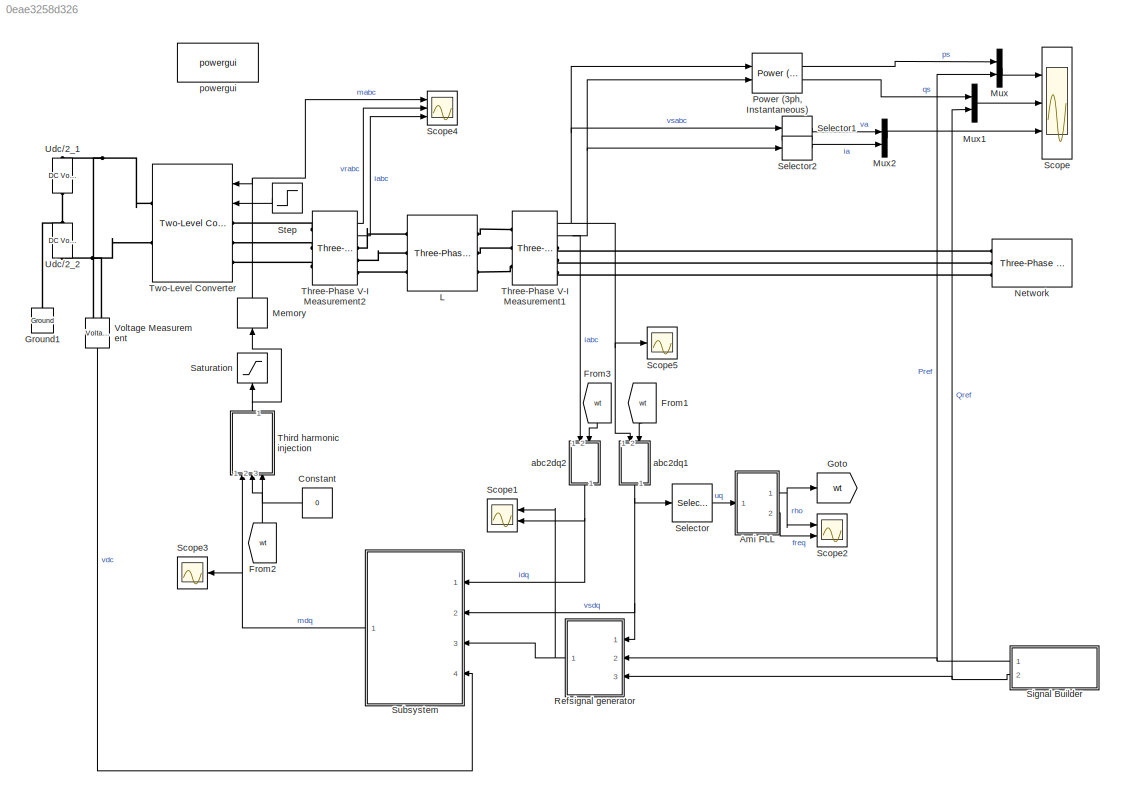
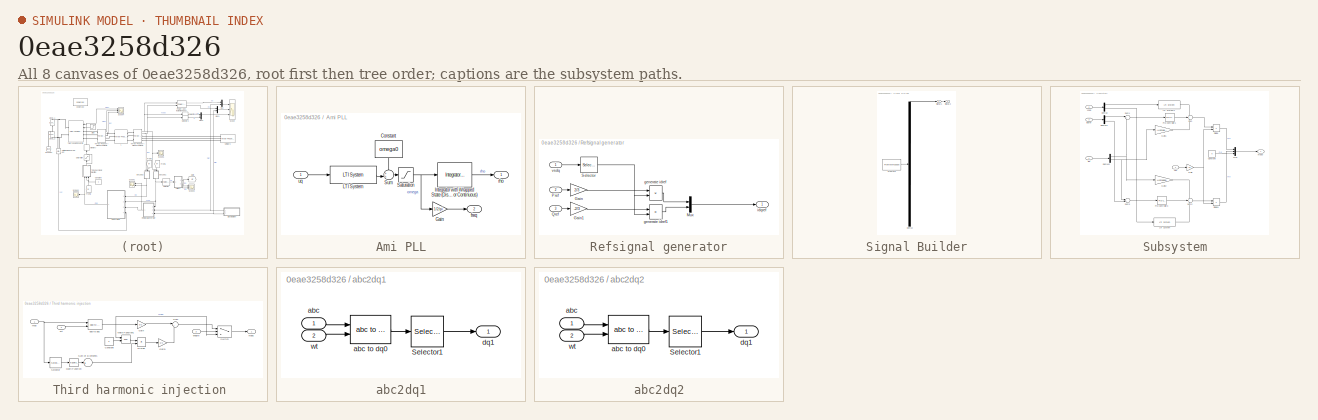
[diagram: thumbnail index - all 8 canvases of the model, root first then tree order]
MODEL slx_0eae3258d326
KIND model
CONFIG AbsTol = auto
CONFIG EnableMultiTasking = off
CONFIG FixedStep = 2e-5
CONFIG InitFcn = current_controlled_VSC_ami8p2_design\n
CONFIG MaxStep = 2e-5
CONFIG MinStep = auto
CONFIG RelTol = 1e-3
CONFIG SampleTimeConstraint = Unconstrained
CONFIG Solver = VariableStepDiscrete
CONFIG SolverName = VariableStepDiscrete
CONFIG StartTime = 0.0
CONFIG StopTime = 0.5
BLOCK [SubSystem] Ami PLL
  Ports = [1, 2]
  RequestExecContextInheritance = off
  Variant = off
BLOCK [Constant] Ami PLL/Constant
  Value = omega0
BLOCK [Gain] Ami PLL/Gain
  Gain = 1/2/pi
  OutDataTypeStr = Inherit: Inherit via internal rule
  ParamDataTypeStr = Inherit: Inherit via internal rule
  SaturateOnIntegerOverflow = off
BLOCK [Reference] Ami PLL/Integrator with Wrapped State (Discrete or Continuous)  REF=peGeneralControl/Integrator with
Wrapped State
(Discrete or Continuous)
  Ports = [1, 1]
  SourceBlock = peGeneralControl/Integrator with\nWrapped State\n(Discrete or Continuous)
  SourceType = Integrator with Wrapped State (Discrete or Continuous)
BLOCK [Reference] Ami PLL/LTI System  REF=cstblocks/LTI System
  Ports = [1, 1]
  SourceBlock = cstblocks/LTI System
  SourceProductBaseCode = CT
  SourceProductName = Control System Toolbox
  SourceType = LTI Block
BLOCK [Saturate] Ami PLL/Saturation
  InputPortMap = u0
  LowerLimit = PLL_wmin
  Ports = [1, 1]
  UpperLimit = PLL_wmax
BLOCK [Sum] Ami PLL/Sum
  IconShape = round
  InputSameDT = off
  Inputs = ++|
  OutDataTypeStr = Inherit: Inherit via internal rule
  Ports = [2, 1]
  SaturateOnIntegerOverflow = off
BLOCK [Outport] Ami PLL/freq
  IconDisplay = Port number
  Port = 2
BLOCK [Outport] Ami PLL/rho
  IconDisplay = Port number
BLOCK [Inport] Ami PLL/uq
  IconDisplay = Port number
BLOCK [Constant] Constant
  Value = 0
BLOCK [From] From1
  GotoTag = wt
BLOCK [From] From2
  GotoTag = wt
BLOCK [From] From3
  GotoTag = wt
BLOCK [Goto] Goto
  GotoTag = wt
BLOCK [Reference] Ground1  REF=powerlib/Elements/Ground
  Ports = [0, 0, 0, 0, 0, 1]
  SourceBlock = powerlib/Elements/Ground
  SourceProductBaseCode = PS
  SourceProductName = Simscape Power Systems
  SourceType = Ground
BLOCK [Reference] L  REF=powerlib/Elements/Three-Phase
Series RLC Branch
  AttributesFormatString = \n
  Ports = [0, 0, 0, 0, 0, 3, 3]
  SourceBlock = powerlib/Elements/Three-Phase\nSeries RLC Branch
  SourceProductBaseCode = PS
  SourceProductName = Simscape Power Systems
  SourceType = Three-Phase Series RLC Branch
BLOCK [Memory] Memory
BLOCK [Mux] Mux
  DisplayOption = bar
  Inputs = 2
  Ports = [2, 1]
BLOCK [Mux] Mux1
  DisplayOption = bar
  Inputs = 2
  Ports = [2, 1]
BLOCK [Mux] Mux2
  DisplayOption = bar
  Inputs = 2
  Ports = [2, 1]
BLOCK [Reference] Network  REF=powerlib/Electrical
Sources/Three-Phase Source
  Ports = [0, 0, 0, 0, 0, 0, 3]
  SourceBlock = powerlib/Electrical\nSources/Three-Phase Source
  SourceProductBaseCode = PS
  SourceProductName = Simscape Power Systems
  SourceType = Three-Phase Source
BLOCK [Reference] Power (3ph, Instantaneous)  REF=powerlib_meascontrol/Measurements/Power
(3ph, Instantaneous)
  Ports = [2, 2]
  SourceBlock = powerlib_meascontrol/Measurements/Power\n(3ph, Instantaneous)
  SourceProductBaseCode = PS
  SourceProductName = Simscape Power Systems
  SourceType = Power (3ph, Instantaneous)
BLOCK [SubSystem] Refsignal generator
  Ports = [3, 1]
  RequestExecContextInheritance = off
  Variant = off
BLOCK [Gain] Refsignal generator/Gain
  Gain = 2/3
  OutDataTypeStr = Inherit: Inherit via internal rule
  ParamDataTypeStr = Inherit: Inherit via internal rule
  SaturateOnIntegerOverflow = off
BLOCK [Gain] Refsignal generator/Gain1
  Gain = -2/3
  OutDataTypeStr = Inherit: Inherit via internal rule
  ParamDataTypeStr = Inherit: Inherit via internal rule
  SaturateOnIntegerOverflow = off
BLOCK [Mux] Refsignal generator/Mux
  DisplayOption = bar
  Inputs = 2
  Ports = [2, 1]
BLOCK [Inport] Refsignal generator/Pref
  IconDisplay = Port number
  Port = 2
BLOCK [Inport] Refsignal generator/Qref
  IconDisplay = Port number
  Port = 3
BLOCK [Selector] Refsignal generator/Selector
  IndexOptions = Index vector (dialog)
  Indices = [1]
  InputPortWidth = 2
  OutputSizes = 1
  Ports = [1, 1]
BLOCK [Product] Refsignal generator/generate idref
  InputSameDT = off
  Inputs = */
  OutDataTypeStr = Inherit: Inherit via internal rule
  Ports = [2, 1]
  RndMeth = Floor
  SaturateOnIntegerOverflow = off
BLOCK [Product] Refsignal generator/generate idref1
  InputSameDT = off
  Inputs = */
  OutDataTypeStr = Inherit: Inherit via internal rule
  Ports = [2, 1]
  RndMeth = Floor
  SaturateOnIntegerOverflow = off
BLOCK [Outport] Refsignal generator/idqref
  IconDisplay = Port number
BLOCK [Inport] Refsignal generator/vsdq
  IconDisplay = Port number
BLOCK [Saturate] Saturation
  InputPortMap = u0
  LowerLimit = -1
  Ports = [1, 1]
  UpperLimit = 1
BLOCK [Scope] Scope
  NumInputPorts = 3
  Ports = [3]
  ScopeSpecificationString = Simulink.scopes.TimeScopeBlockCfg('CurrentConfiguration', extmgr.ConfigurationSet(extmgr.Configuration('Core','General UI',true),extmgr.Configuration('Core','Source UI',true),extmgr.Configuration('Sources','WiredSimulink',true),extmgr.Configuration('Visuals','Time Domain',true,'SerializedDisplays',{struct('MinYLimReal','-7272141.74711','MaxYLimReal','5973260.60667','YLabelReal','','MinYLimMag','  ...<+2774ch>
BLOCK [Scope] Scope1
  NumInputPorts = 2
  Ports = [2]
  ScopeSpecificationString = Simulink.scopes.TimeScopeBlockCfg('CurrentConfiguration', extmgr.ConfigurationSet(extmgr.Configuration('Core','General UI',true),extmgr.Configuration('Core','Source UI',true),extmgr.Configuration('Sources','WiredSimulink',true,'DataLoggingVariableName','ScopeData1'),extmgr.Configuration('Visuals','Time Domain',true,'SerializedDisplays',{struct('MinYLimReal','-27745.62536','MaxYLimReal','21729.0335...<+1485ch>
BLOCK [Scope] Scope2
  NumInputPorts = 2
  Ports = [2]
  ScopeSpecificationString = Simulink.scopes.TimeScopeBlockCfg('CurrentConfiguration', extmgr.ConfigurationSet(extmgr.Configuration('Core','General UI',true),extmgr.Configuration('Core','Source UI',true),extmgr.Configuration('Sources','WiredSimulink',true,'DataLoggingVariableName','ScopeData2'),extmgr.Configuration('Visuals','Time Domain',true,'SerializedDisplays',{struct('MinYLimReal','-0.7854','MaxYLimReal','7.06858','YLabe...<+1989ch>
BLOCK [Scope] Scope3
  NumInputPorts = 1
  Ports = [1]
  ScopeSpecificationString = Simulink.scopes.TimeScopeBlockCfg('CurrentConfiguration', extmgr.ConfigurationSet(extmgr.Configuration('Core','General UI',true),extmgr.Configuration('Core','Source UI',true),extmgr.Configuration('Sources','WiredSimulink',true,'DataLoggingVariableName','ScopeData1'),extmgr.Configuration('Visuals','Time Domain',true,'SerializedDisplays',{struct('MinYLimReal','-0.56098','MaxYLimReal','1.53286','YLab...<+1476ch>
BLOCK [Scope] Scope4
  NumInputPorts = 3
  Ports = [3]
  ScopeSpecificationString = Simulink.scopes.TimeScopeBlockCfg('CurrentConfiguration', extmgr.ConfigurationSet(extmgr.Configuration('Core','General UI',true),extmgr.Configuration('Core','Source UI',true),extmgr.Configuration('Sources','WiredSimulink',true,'DataLoggingVariableName','ScopeData2'),extmgr.Configuration('Visuals','Time Domain',true,'SerializedDisplays',{struct('MinYLimReal','-1.00000','MaxYLimReal','1.00000','YLab...<+2813ch>
BLOCK [Scope] Scope5
  NumInputPorts = 1
  Ports = [1]
  ScopeSpecificationString = Simulink.scopes.TimeScopeBlockCfg('CurrentConfiguration', extmgr.ConfigurationSet(extmgr.Configuration('Core','General UI',true),extmgr.Configuration('Core','Source UI',true),extmgr.Configuration('Sources','WiredSimulink',true,'DataLoggingVariableName','ScopeData1'),extmgr.Configuration('Visuals','Time Domain',true,'SerializedDisplays',{struct('MinYLimReal','-489.89795','MaxYLimReal','489.89795','...<+1496ch>
BLOCK [Selector] Selector
  IndexOptions = Index vector (dialog)
  Indices = [2]
  InputPortWidth = 2
  OutputSizes = 1
  Ports = [1, 1]
BLOCK [Selector] Selector1
  IndexOptions = Index vector (dialog)
  Indices = [1]
  InputPortWidth = 3
  OutputSizes = 1
  Ports = [1, 1]
BLOCK [Selector] Selector2
  IndexOptions = Index vector (dialog)
  Indices = [1]
  InputPortWidth = 3
  OutputSizes = 1
  Ports = [1, 1]
BLOCK [SubSystem] Signal Builder
  ClipboardFcn = sigbuilder_block('clipboard');
  CloseFcn = sigbuilder_block('close');
  ContinueFcn = sigbuilder_block('continue');
  CopyFcn = sigbuilder_block('copy');
  DeleteFcn = sigbuilder_block('delete');
  LoadFcn = sigbuilder_block('load');
  MaskHideContents = on
  ModelCloseFcn = sigbuilder_block('modelClose');
  NameChangeFcn = sigbuilder_block('namechange');
  OpenFcn = sigbuilder_block('open',[437.6 199.2 550.4 400 ]);
  PauseFcn = sigbuilder_block('pause');
  Ports = [0, 2]
  PreSaveFcn = sigbuilder_block('preSave');
  RequestExecContextInheritance = off
  StartFcn = sigbuilder_block('start');
  StopFcn = sigbuilder_block('stop');
  Tag = STV Subsys
  Variant = off
BLOCK [Demux] Signal Builder/Demux
  Outputs = 2
  Ports = [1, 2]
  Tag = STV Demux
BLOCK [FromWorkspace] Signal Builder/FromWs
  SampleTime = 0
  Tag = STV FromWs
  VariableName = tuvar
  ZeroCross = on
BLOCK [Outport] Signal Builder/Signal 1
  IconDisplay = Port number
  Tag = STV Outport
BLOCK [Outport] Signal Builder/Signal 2
  IconDisplay = Port number
  Port = 2
  Tag = STV Outport
BLOCK [Step] Step
  After = 0
  Before = 1
  SampleTime = 0
  Time = 0.15
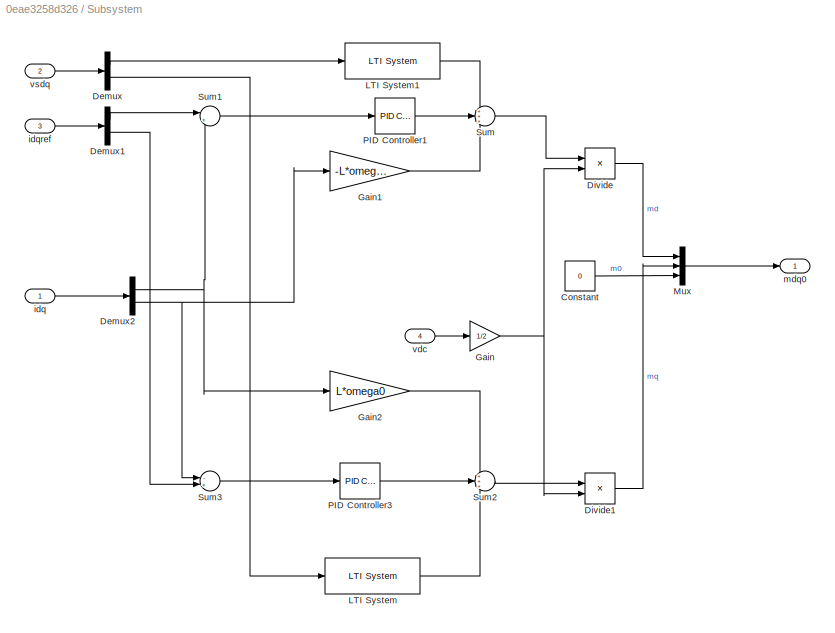
BLOCK [SubSystem] Subsystem
  Ports = [4, 1]
  RequestExecContextInheritance = off
  Variant = off
BLOCK [Constant] Subsystem/Constant
  Value = 0
BLOCK [Demux] Subsystem/Demux
  DisplayOption = bar
  Outputs = 2
  Ports = [1, 2]
BLOCK [Demux] Subsystem/Demux1
  DisplayOption = bar
  Outputs = 2
  Ports = [1, 2]
BLOCK [Demux] Subsystem/Demux2
  DisplayOption = bar
  Outputs = 2
  Ports = [1, 2]
BLOCK [Product] Subsystem/Divide
  InputSameDT = off
  Inputs = */
  OutDataTypeStr = Inherit: Inherit via internal rule
  Ports = [2, 1]
  RndMeth = Floor
  SaturateOnIntegerOverflow = off
BLOCK [Product] Subsystem/Divide1
  InputSameDT = off
  Inputs = */
  OutDataTypeStr = Inherit: Inherit via internal rule
  Ports = [2, 1]
  RndMeth = Floor
  SaturateOnIntegerOverflow = off
BLOCK [Gain] Subsystem/Gain
  Gain = 1/2
  OutDataTypeStr = Inherit: Inherit via internal rule
  ParamDataTypeStr = Inherit: Inherit via internal rule
  SaturateOnIntegerOverflow = off
BLOCK [Gain] Subsystem/Gain1
  Gain = -L*omega0
  OutDataTypeStr = Inherit: Inherit via internal rule
  ParamDataTypeStr = Inherit: Inherit via internal rule
  SaturateOnIntegerOverflow = off
BLOCK [Gain] Subsystem/Gain2
  Gain = L*omega0
  OutDataTypeStr = Inherit: Inherit via internal rule
  ParamDataTypeStr = Inherit: Inherit via internal rule
  SaturateOnIntegerOverflow = off
BLOCK [Reference] Subsystem/LTI System  REF=cstblocks/LTI System
  Ports = [1, 1]
  SourceBlock = cstblocks/LTI System
  SourceProductBaseCode = CT
  SourceProductName = Control System Toolbox
  SourceType = LTI Block
BLOCK [Reference] Subsystem/LTI System1  REF=cstblocks/LTI System
  Ports = [1, 1]
  SourceBlock = cstblocks/LTI System
  SourceProductBaseCode = CT
  SourceProductName = Control System Toolbox
  SourceType = LTI Block
BLOCK [Mux] Subsystem/Mux
  DisplayOption = bar
  Inputs = 3
  Ports = [3, 1]
BLOCK [Reference] Subsystem/PID Controller1  REF=simulink/Continuous/PID Controller
  Ports = [1, 1]
  SourceBlock = simulink/Continuous/PID Controller
  SourceProductBaseCode = SL
  SourceProductName = Simulink
  SourceType = PID 1dof
BLOCK [Reference] Subsystem/PID Controller3  REF=simulink/Continuous/PID Controller
  Ports = [1, 1]
  SourceBlock = simulink/Continuous/PID Controller
  SourceProductBaseCode = SL
  SourceProductName = Simulink
  SourceType = PID 1dof
BLOCK [Sum] Subsystem/Sum
  IconShape = round
  InputSameDT = off
  Inputs = +++
  OutDataTypeStr = Inherit: Inherit via internal rule
  Ports = [3, 1]
  SaturateOnIntegerOverflow = off
BLOCK [Sum] Subsystem/Sum1
  IconShape = round
  InputSameDT = off
  Inputs = |+-
  OutDataTypeStr = Inherit: Inherit via internal rule
  Ports = [2, 1]
  SaturateOnIntegerOverflow = off
BLOCK [Sum] Subsystem/Sum2
  IconShape = round
  InputSameDT = off
  Inputs = +++
  OutDataTypeStr = Inherit: Inherit via internal rule
  Ports = [3, 1]
  SaturateOnIntegerOverflow = off
BLOCK [Sum] Subsystem/Sum3
  IconShape = round
  InputSameDT = off
  Inputs = -+|
  OutDataTypeStr = Inherit: Inherit via internal rule
  Ports = [2, 1]
  SaturateOnIntegerOverflow = off
BLOCK [Inport] Subsystem/idq
  IconDisplay = Port number
BLOCK [Inport] Subsystem/idqref
  IconDisplay = Port number
  Port = 3
BLOCK [Outport] Subsystem/mdq0
  IconDisplay = Port number
BLOCK [Inport] Subsystem/vdc
  IconDisplay = Port number
  Port = 4
BLOCK [Inport] Subsystem/vsdq
  IconDisplay = Port number
  Port = 2
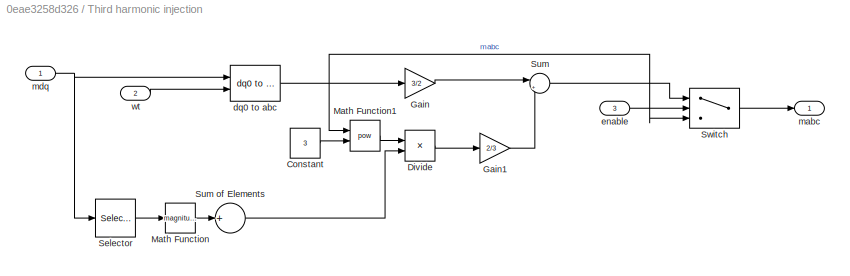
BLOCK [SubSystem] Third harmonic injection 
  Ports = [3, 1]
  RequestExecContextInheritance = off
  Variant = off
BLOCK [Constant] Third harmonic injection /Constant
  Value = 3
BLOCK [Product] Third harmonic injection /Divide
  InputSameDT = off
  Inputs = */
  OutDataTypeStr = Inherit: Inherit via internal rule
  Ports = [2, 1]
  RndMeth = Floor
  SaturateOnIntegerOverflow = off
BLOCK [Gain] Third harmonic injection /Gain
  Gain = 3/2
  OutDataTypeStr = Inherit: Inherit via internal rule
  ParamDataTypeStr = Inherit: Inherit via internal rule
  SaturateOnIntegerOverflow = off
BLOCK [Gain] Third harmonic injection /Gain1
  Gain = 2/3
  OutDataTypeStr = Inherit: Inherit via internal rule
  ParamDataTypeStr = Inherit: Inherit via internal rule
  SaturateOnIntegerOverflow = off
BLOCK [Math] Third harmonic injection /Math Function
  Operator = magnitude^2
  Ports = [1, 1]
BLOCK [Math] Third harmonic injection /Math Function1
  Operator = pow
  Ports = [2, 1]
BLOCK [Selector] Third harmonic injection /Selector
  IndexOptions = Index vector (dialog)
  Indices = [1 2]
  InputPortWidth = 3
  OutputSizes = 1
  Ports = [1, 1]
BLOCK [Sum] Third harmonic injection /Sum
  IconShape = round
  InputSameDT = off
  Inputs = |+-
  OutDataTypeStr = Inherit: Inherit via internal rule
  Ports = [2, 1]
  SaturateOnIntegerOverflow = off
BLOCK [Sum] Third harmonic injection /Sum of Elements
  InputSameDT = off
  Inputs = +
  OutDataTypeStr = Inherit: Inherit via internal rule
  Ports = [1, 1]
  SaturateOnIntegerOverflow = off
BLOCK [Switch] Third harmonic injection /Switch
  Criteria = u2 > Threshold
  InputSameDT = off
  SaturateOnIntegerOverflow = off
BLOCK [Reference] Third harmonic injection /dq0 to abc  REF=powerlib_meascontrol/Transformations/dq0 to abc
  Ports = [2, 1]
  SourceBlock = powerlib_meascontrol/Transformations/dq0 to abc
  SourceProductBaseCode = PS
  SourceProductName = Simscape Power Systems
  SourceType = dq0 to abc Transformation
BLOCK [Inport] Third harmonic injection /enable
  IconDisplay = Port number
  Port = 3
BLOCK [Outport] Third harmonic injection /mabc
  IconDisplay = Port number
BLOCK [Inport] Third harmonic injection /mdq
  IconDisplay = Port number
BLOCK [Inport] Third harmonic injection /wt
  IconDisplay = Port number
  Port = 2
BLOCK [Reference] Three-Phase V-I Measurement1  REF=powerlib/Measurements/Three-Phase
V-I Measurement
  Ports = [0, 2, 0, 0, 0, 3, 3]
  SourceBlock = powerlib/Measurements/Three-Phase\nV-I Measurement
  SourceProductBaseCode = PS
  SourceProductName = Simscape Power Systems
  SourceType = Three-Phase VI Measurement
BLOCK [Reference] Three-Phase V-I Measurement2  REF=powerlib/Measurements/Three-Phase
V-I Measurement
  Ports = [0, 2, 0, 0, 0, 3, 3]
  SourceBlock = powerlib/Measurements/Three-Phase\nV-I Measurement
  SourceProductBaseCode = PS
  SourceProductName = Simscape Power Systems
  SourceType = Three-Phase VI Measurement
BLOCK [Reference] Two-Level Converter  REF=powerlib/Power
Electronics/Two-Level Converter
  Ports = [2, 0, 0, 0, 0, 3, 2]
  SourceBlock = powerlib/Power\nElectronics/Two-Level Converter
  SourceProductBaseCode = PS
  SourceProductName = Simscape Power Systems
  SourceType = Two-Level Converter
BLOCK [Reference] Udc//2_1  REF=powerlib/Electrical
Sources/DC Voltage Source
  Ports = [0, 0, 0, 0, 0, 1, 1]
  SourceBlock = powerlib/Electrical\nSources/DC Voltage Source
  SourceProductBaseCode = PS
  SourceProductName = Simscape Power Systems
  SourceType = DC Voltage Source
BLOCK [Reference] Udc//2_2  REF=powerlib/Electrical
Sources/DC Voltage Source
  Ports = [0, 0, 0, 0, 0, 1, 1]
  SourceBlock = powerlib/Electrical\nSources/DC Voltage Source
  SourceProductBaseCode = PS
  SourceProductName = Simscape Power Systems
  SourceType = DC Voltage Source
BLOCK [Reference] Voltage Measurement  REF=powerlib/Measurements/Voltage Measurement
  Ports = [0, 1, 0, 0, 0, 2]
  SourceBlock = powerlib/Measurements/Voltage Measurement
  SourceProductBaseCode = PS
  SourceProductName = Simscape Power Systems
  SourceType = Voltage Measurement
  UserDataPersistent = on
BLOCK [SubSystem] abc2dq1
  Ports = [2, 1]
  RequestExecContextInheritance = off
  Variant = off
BLOCK [Selector] abc2dq1/Selector1
  IndexOptions = Index vector (dialog)
  Indices = [1 2]
  InputPortWidth = 3
  OutputSizes = 1
  Ports = [1, 1]
BLOCK [Inport] abc2dq1/abc
  IconDisplay = Port number
BLOCK [Reference] abc2dq1/abc to dq0  REF=powerlib_meascontrol/Transformations/abc to dq0
  Ports = [2, 1]
  SourceBlock = powerlib_meascontrol/Transformations/abc to dq0
  SourceProductBaseCode = PS
  SourceProductName = Simscape Power Systems
  SourceType = abc to dq0 Transformation
BLOCK [Outport] abc2dq1/dq1
  IconDisplay = Port number
BLOCK [Inport] abc2dq1/wt
  IconDisplay = Port number
  Port = 2
BLOCK [SubSystem] abc2dq2
  Ports = [2, 1]
  RequestExecContextInheritance = off
  Variant = off
BLOCK [Selector] abc2dq2/Selector1
  IndexOptions = Index vector (dialog)
  Indices = [1 2]
  InputPortWidth = 3
  OutputSizes = 1
  Ports = [1, 1]
BLOCK [Inport] abc2dq2/abc
  IconDisplay = Port number
BLOCK [Reference] abc2dq2/abc to dq0  REF=powerlib_meascontrol/Transformations/abc to dq0
  Ports = [2, 1]
  SourceBlock = powerlib_meascontrol/Transformations/abc to dq0
  SourceProductBaseCode = PS
  SourceProductName = Simscape Power Systems
  SourceType = abc to dq0 Transformation
BLOCK [Outport] abc2dq2/dq1
  IconDisplay = Port number
BLOCK [Inport] abc2dq2/wt
  IconDisplay = Port number
  Port = 2
BLOCK [Reference] powergui  REF=powerlib/powergui
  Ports = []
  Priority = 1
  SourceBlock = powerlib/powergui
  SourceProductBaseCode = PS
  SourceProductName = Simscape Power Systems
  SourceType = PSB option menu block
LINE Ami PLL/Constant:1 -> Ami PLL/Sum:1
LINE Ami PLL/Gain:1 -> Ami PLL/freq:1
LINE Ami PLL/Integrator with Wrapped State (Discrete or Continuous):1 -> Ami PLL/rho:1
LINE Ami PLL/LTI System:1 -> Ami PLL/Sum:2
NET Ami PLL/Saturation:1 -> Ami PLL/Gain:1, Ami PLL/Integrator with Wrapped State (Discrete or Continuous):1
LINE Ami PLL/Sum:1 -> Ami PLL/Saturation:1
LINE Ami PLL/uq:1 -> Ami PLL/LTI System:1
NET Ami PLL:1 -> Goto:1, Scope2:1
LINE Ami PLL:2 -> Scope2:2
LINE Constant:1 -> Third harmonic injection :3
LINE From1:1 -> abc2dq1:2
LINE From2:1 -> Third harmonic injection :2
LINE From3:1 -> abc2dq2:2
NET Memory:1 -> Scope4:1, Two-Level Converter:1
LINE Mux1:1 -> Scope:2
LINE Mux2:1 -> Scope:3
LINE Mux:1 -> Scope:1
LINE Power (3ph, Instantaneous):1 -> Mux:1
LINE Power (3ph, Instantaneous):2 -> Mux1:1
LINE Refsignal generator/Gain1:1 -> Refsignal generator/generate idref1:1
LINE Refsignal generator/Gain:1 -> Refsignal generator/generate idref:1
LINE Refsignal generator/Mux:1 -> Refsignal generator/idqref:1
LINE Refsignal generator/Pref:1 -> Refsignal generator/Gain:1
LINE Refsignal generator/Qref:1 -> Refsignal generator/Gain1:1
NET Refsignal generator/Selector:1 -> Refsignal generator/generate idref1:2, Refsignal generator/generate idref:2
LINE Refsignal generator/generate idref1:1 -> Refsignal generator/Mux:2
LINE Refsignal generator/generate idref:1 -> Refsignal generator/Mux:1
LINE Refsignal generator/vsdq:1 -> Refsignal generator/Selector:1
NET Refsignal generator:1 -> Scope1:1, Subsystem:3
LINE Selector1:1 -> Mux2:1
LINE Selector2:1 -> Mux2:2
LINE Selector:1 -> Ami PLL:1
NET Signal Builder:1 -> Mux:2, Refsignal generator:2
NET Signal Builder:2 -> Mux1:2, Refsignal generator:3
LINE Step:1 -> Two-Level Converter:2
LINE Subsystem/Constant:1 -> Subsystem/Mux:3
LINE Subsystem/Demux1:1 -> Subsystem/Sum1:1
LINE Subsystem/Demux1:2 -> Subsystem/Sum3:2
NET Subsystem/Demux2:1 -> Subsystem/Gain2:1, Subsystem/Sum1:2
NET Subsystem/Demux2:2 -> Subsystem/Gain1:1, Subsystem/Sum3:1
LINE Subsystem/Demux:1 -> Subsystem/LTI System1:1
LINE Subsystem/Demux:2 -> Subsystem/LTI System:1
LINE Subsystem/Divide1:1 -> Subsystem/Mux:2
LINE Subsystem/Divide:1 -> Subsystem/Mux:1
LINE Subsystem/Gain1:1 -> Subsystem/Sum:3
LINE Subsystem/Gain2:1 -> Subsystem/Sum2:1
NET Subsystem/Gain:1 -> Subsystem/Divide1:2, Subsystem/Divide:2
LINE Subsystem/LTI System1:1 -> Subsystem/Sum:1
LINE Subsystem/LTI System:1 -> Subsystem/Sum2:3
LINE Subsystem/Mux:1 -> Subsystem/mdq0:1
LINE Subsystem/PID Controller1:1 -> Subsystem/Sum:2
LINE Subsystem/PID Controller3:1 -> Subsystem/Sum2:2
LINE Subsystem/Sum1:1 -> Subsystem/PID Controller1:1
LINE Subsystem/Sum2:1 -> Subsystem/Divide1:1
LINE Subsystem/Sum3:1 -> Subsystem/PID Controller3:1
LINE Subsystem/Sum:1 -> Subsystem/Divide:1
LINE Subsystem/idq:1 -> Subsystem/Demux2:1
LINE Subsystem/idqref:1 -> Subsystem/Demux1:1
LINE Subsystem/vdc:1 -> Subsystem/Gain:1
LINE Subsystem/vsdq:1 -> Subsystem/Demux:1
NET Subsystem:1 -> Scope3:1, Third harmonic injection :1
LINE Third harmonic injection /Constant:1 -> Third harmonic injection /Math Function1:2
LINE Third harmonic injection /Divide:1 -> Third harmonic injection /Gain1:1
LINE Third harmonic injection /Gain1:1 -> Third harmonic injection /Sum:2
LINE Third harmonic injection /Gain:1 -> Third harmonic injection /Sum:1
LINE Third harmonic injection /Math Function1:1 -> Third harmonic injection /Divide:1
LINE Third harmonic injection /Math Function:1 -> Third harmonic injection /Sum of Elements:1
LINE Third harmonic injection /Selector:1 -> Third harmonic injection /Math Function:1
LINE Third harmonic injection /Sum of Elements:1 -> Third harmonic injection /Divide:2
LINE Third harmonic injection /Sum:1 -> Third harmonic injection /Switch:1
LINE Third harmonic injection /Switch:1 -> Third harmonic injection /mabc:1
NET Third harmonic injection /dq0 to abc:1 -> Third harmonic injection /Gain:1, Third harmonic injection /Math Function1:1, Third harmonic injection /Switch:3
LINE Third harmonic injection /enable:1 -> Third harmonic injection /Switch:2
NET Third harmonic injection /mdq:1 -> Third harmonic injection /Selector:1, Third harmonic injection /dq0 to abc:1
LINE Third harmonic injection /wt:1 -> Third harmonic injection /dq0 to abc:2
NET Third harmonic injection :1 -> Memory:1, Saturation:1
NET Three-Phase V-I Measurement1:1 -> Power (3ph, Instantaneous):1, Scope5:1, Selector1:1, abc2dq1:1
NET Three-Phase V-I Measurement1:2 -> Power (3ph, Instantaneous):2, Selector2:1, abc2dq2:1
LINE Three-Phase V-I Measurement2:1 -> Scope4:2
LINE Three-Phase V-I Measurement2:2 -> Scope4:3
LINE Voltage Measurement:1 -> Subsystem:4
LINE abc2dq1/Selector1:1 -> abc2dq1/dq1:1
LINE abc2dq1/abc to dq0:1 -> abc2dq1/Selector1:1
LINE abc2dq1/abc:1 -> abc2dq1/abc to dq0:1
LINE abc2dq1/wt:1 -> abc2dq1/abc to dq0:2
NET abc2dq1:1 -> Refsignal generator:1, Selector:1, Subsystem:2
LINE abc2dq2/Selector1:1 -> abc2dq2/dq1:1
LINE abc2dq2/abc to dq0:1 -> abc2dq2/Selector1:1
LINE abc2dq2/abc:1 -> abc2dq2/abc to dq0:1
LINE abc2dq2/wt:1 -> abc2dq2/abc to dq0:2
NET abc2dq2:1 -> Scope1:2, Subsystem:1
PNET net1: Ground1:LConn1 -- Udc//2_1:LConn1 -- Udc//2_2:RConn1
PLINE L:LConn1 -- Three-Phase V-I Measurement2:RConn1
PLINE L:LConn2 -- Three-Phase V-I Measurement2:RConn2
PLINE L:LConn3 -- Three-Phase V-I Measurement2:RConn3
PLINE L:RConn1 -- Three-Phase V-I Measurement1:LConn1
PLINE L:RConn2 -- Three-Phase V-I Measurement1:LConn2
PLINE L:RConn3 -- Three-Phase V-I Measurement1:LConn3
PLINE Network:RConn1 -- Three-Phase V-I Measurement1:RConn1
PLINE Network:RConn2 -- Three-Phase V-I Measurement1:RConn2
PLINE Network:RConn3 -- Three-Phase V-I Measurement1:RConn3
PLINE Three-Phase V-I Measurement2:LConn1 -- Two-Level Converter:LConn1
PLINE Three-Phase V-I Measurement2:LConn2 -- Two-Level Converter:LConn2
PLINE Three-Phase V-I Measurement2:LConn3 -- Two-Level Converter:LConn3
PNET net2: Two-Level Converter:RConn1 -- Udc//2_1:RConn1 -- Voltage Measurement:LConn1
PNET net3: Two-Level Converter:RConn2 -- Udc//2_2:LConn1 -- Voltage Measurement:LConn2
note: NET lines group one-source signal fan-out (src -> all destinations, sorted); 1:1 wires keep LINE; PNET lines group multi-terminal physical nets as a canonical sorted terminal list (undirected conserving connections); 2-terminal nets keep the pairwise PLINE form
